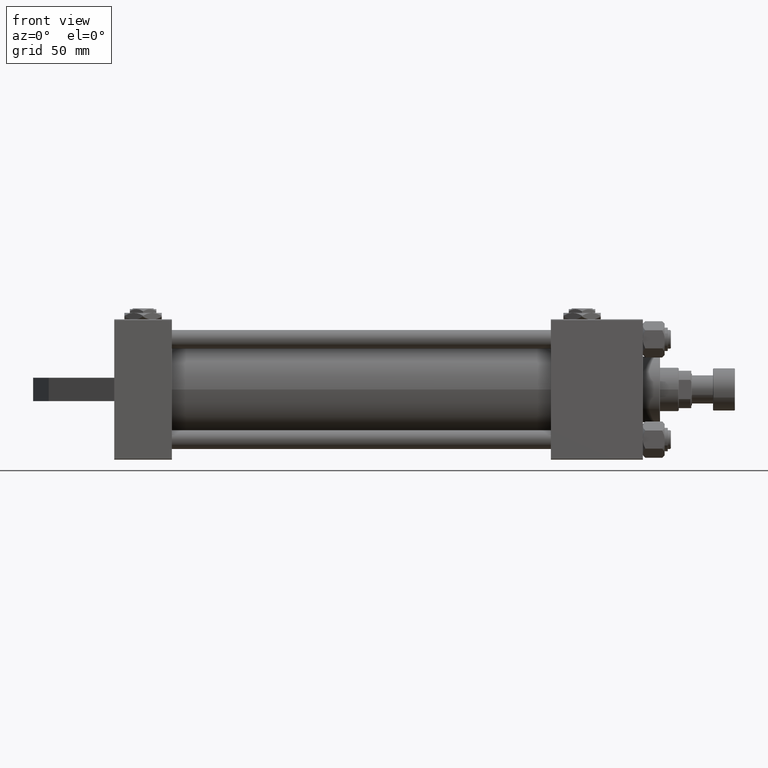
[diagram: clean part render]
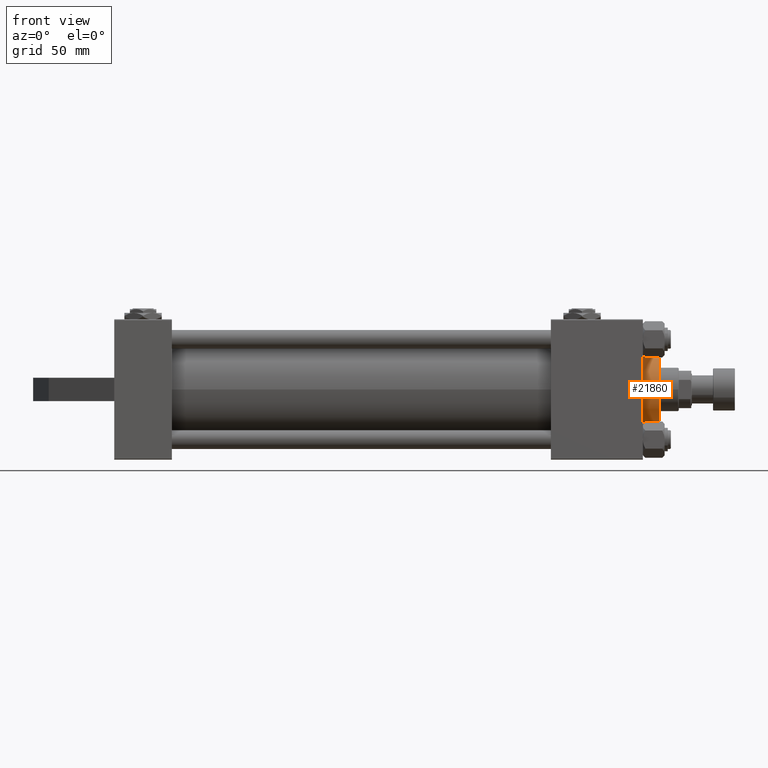
[diagram: same view with one face highlighted and labeled with its STEP entity id]
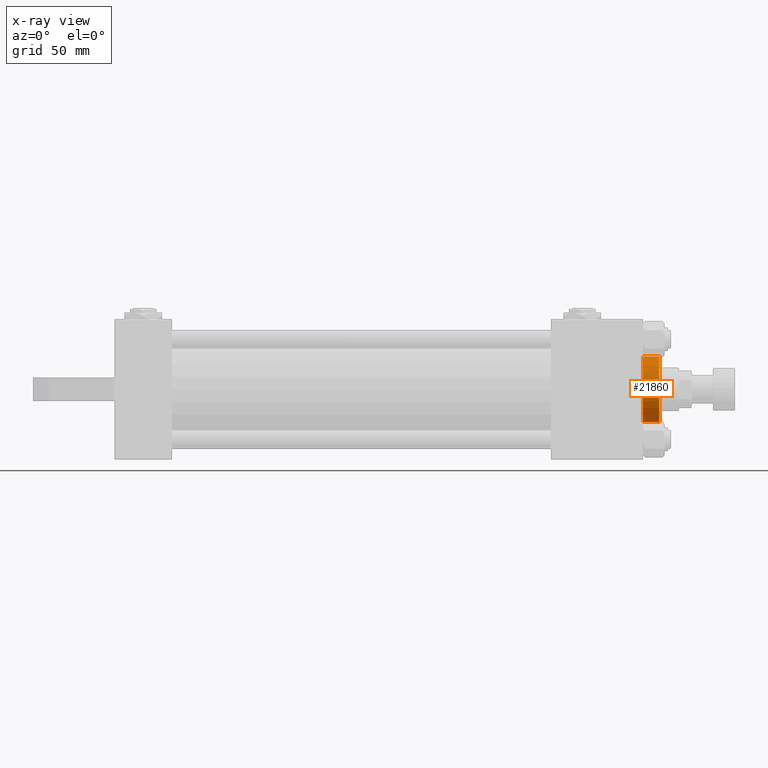
[diagram: x-ray of the same camera — body ghosted, the highlighted face saturated]
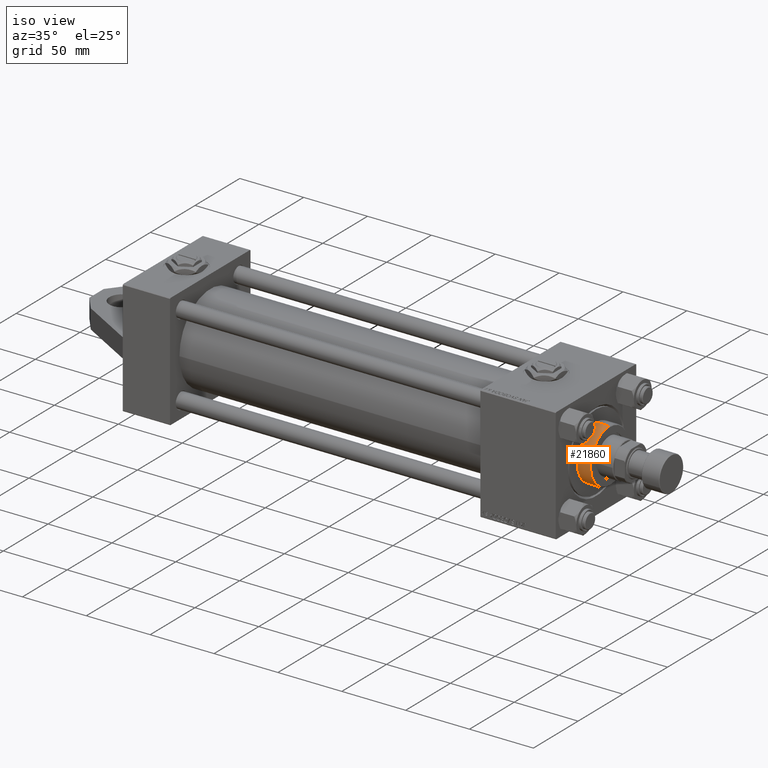
[diagram: same view with one face highlighted and labeled with its STEP entity id]
A machine part, front view. The second image highlights one B-rep face of the part: STEP entity #21860.
The next image is the same camera in x-ray: the body ghosted, the highlighted face saturated — about 0% of this face is hidden behind the body in this view.
A second angle (iso view) of the same face is appended — the face is thin or edge-on in the first view.
In plain terms, the highlighted cylindrical surface (edge-blend (fillet) strip) has radius 21 mm, axis along (-1, -0, -0).
Its self-contained STEP definition (entity closure, byte-faithful):
#462 = CARTESIAN_POINT ( 'NONE',  ( 21.00000000000000000, 2.571758278209441661E-15, 39.69999999999999574 ) ) ;
#1871 = EDGE_CURVE ( 'NONE', #17280, #30706, #10789, .T. ) ;
#4449 = VERTEX_POINT ( 'NONE', #27363 ) ;
#6491 = VERTEX_POINT ( 'NONE', #40149 ) ;
#9412 = CIRCLE ( 'NONE', #47886, 21.00000000000000000 ) ;
#10080 = EDGE_CURVE ( 'NONE', #17280, #4449, #9412, .T. ) ;
#10789 = LINE ( 'NONE', #462, #35012 ) ;
#13727 = VECTOR ( 'NONE', #40232, 1000.000000000000000 ) ;
#15492 = CARTESIAN_POINT ( 'NONE',  ( 21.00000000000000000, 2.571758278209441661E-15, 28.69999999999999929 ) ) ;
#16165 = CIRCLE ( 'NONE', #43677, 21.00000000000000000 ) ;
#17280 = VERTEX_POINT ( 'NONE', #31498 ) ;
#17476 = DIRECTION ( 'NONE',  ( -1.000000000000000000, 0.000000000000000000, 0.000000000000000000 ) ) ;
#20781 = AXIS2_PLACEMENT_3D ( 'NONE', #24382, #24877, #17476 ) ;
#21196 = EDGE_CURVE ( 'NONE', #4449, #6491, #28443, .T. ) ;
#21860 = ADVANCED_FACE ( 'NONE', ( #31998 ), #32485, .T. ) ;
#24382 = CARTESIAN_POINT ( 'NONE',  ( 0.000000000000000000, 0.000000000000000000, 39.69999999999999574 ) ) ;
#24468 = EDGE_CURVE ( 'NONE', #6491, #30706, #16165, .T. ) ;
#24877 = DIRECTION ( 'NONE',  ( -0.000000000000000000, -0.000000000000000000, -1.000000000000000000 ) ) ;
#27363 = CARTESIAN_POINT ( 'NONE',  ( -21.00000000000000000, 0.000000000000000000, 39.19999999999999574 ) ) ;
#28443 = LINE ( 'NONE', #32849, #13727 ) ;
#30706 = VERTEX_POINT ( 'NONE', #15492 ) ;
#30738 = ORIENTED_EDGE ( 'NONE', *, *, #1871, .F. ) ;
#31498 = CARTESIAN_POINT ( 'NONE',  ( 21.00000000000000000, 2.571758278209441661E-15, 39.19999999999999574 ) ) ;
#31998 = FACE_OUTER_BOUND ( 'NONE', #36471, .T. ) ;
#32137 = DIRECTION ( 'NONE',  ( 1.000000000000000000, 0.000000000000000000, 0.000000000000000000 ) ) ;
#32485 = CYLINDRICAL_SURFACE ( 'NONE', #20781, 21.00000000000000000 ) ;
#32629 = DIRECTION ( 'NONE',  ( 0.000000000000000000, 0.000000000000000000, -1.000000000000000000 ) ) ;
#32849 = CARTESIAN_POINT ( 'NONE',  ( -21.00000000000000000, 0.000000000000000000, 39.69999999999999574 ) ) ;
#35012 = VECTOR ( 'NONE', #45432, 1000.000000000000000 ) ;
#36471 = EDGE_LOOP ( 'NONE', ( #30738, #37763, #47321, #41735 ) ) ;
#36543 = CARTESIAN_POINT ( 'NONE',  ( 0.000000000000000000, 0.000000000000000000, 39.19999999999999574 ) ) ;
#37009 = CARTESIAN_POINT ( 'NONE',  ( 0.000000000000000000, 0.000000000000000000, 28.69999999999999929 ) ) ;
#37763 = ORIENTED_EDGE ( 'NONE', *, *, #10080, .T. ) ;
#40149 = CARTESIAN_POINT ( 'NONE',  ( -21.00000000000000000, 0.000000000000000000, 28.69999999999999929 ) ) ;
#40232 = DIRECTION ( 'NONE',  ( -0.000000000000000000, -0.000000000000000000, -1.000000000000000000 ) ) ;
#40714 = DIRECTION ( 'NONE',  ( 1.000000000000000000, 0.000000000000000000, 0.000000000000000000 ) ) ;
#41735 = ORIENTED_EDGE ( 'NONE', *, *, #24468, .T. ) ;
#43677 = AXIS2_PLACEMENT_3D ( 'NONE', #37009, #48086, #40714 ) ;
#45432 = DIRECTION ( 'NONE',  ( -0.000000000000000000, -0.000000000000000000, -1.000000000000000000 ) ) ;
#47321 = ORIENTED_EDGE ( 'NONE', *, *, #21196, .T. ) ;
#47886 = AXIS2_PLACEMENT_3D ( 'NONE', #36543, #32629, #32137 ) ;
#48086 = DIRECTION ( 'NONE',  ( 0.000000000000000000, 0.000000000000000000, 1.000000000000000000 ) ) ;